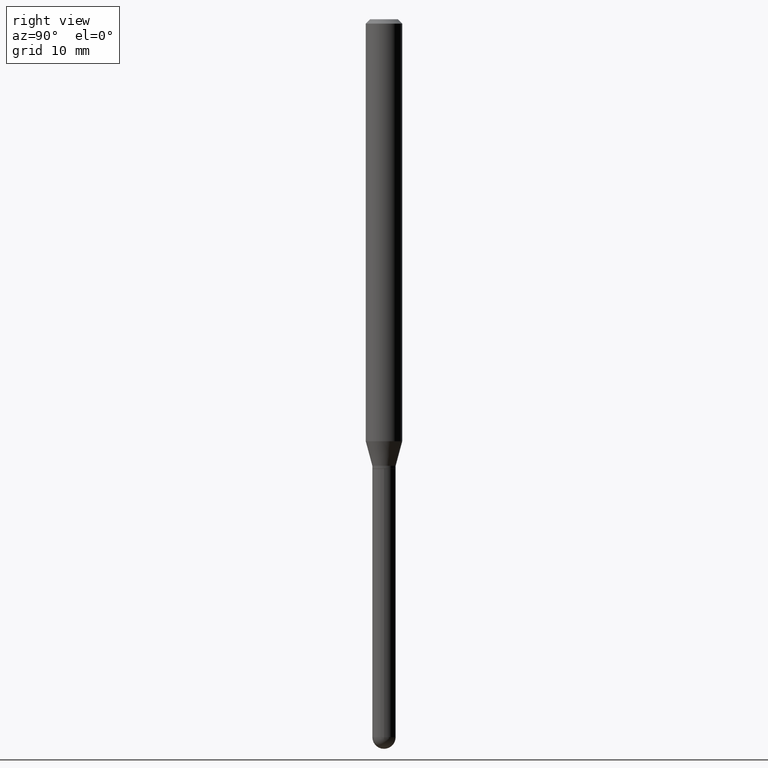
[diagram: clean part render]
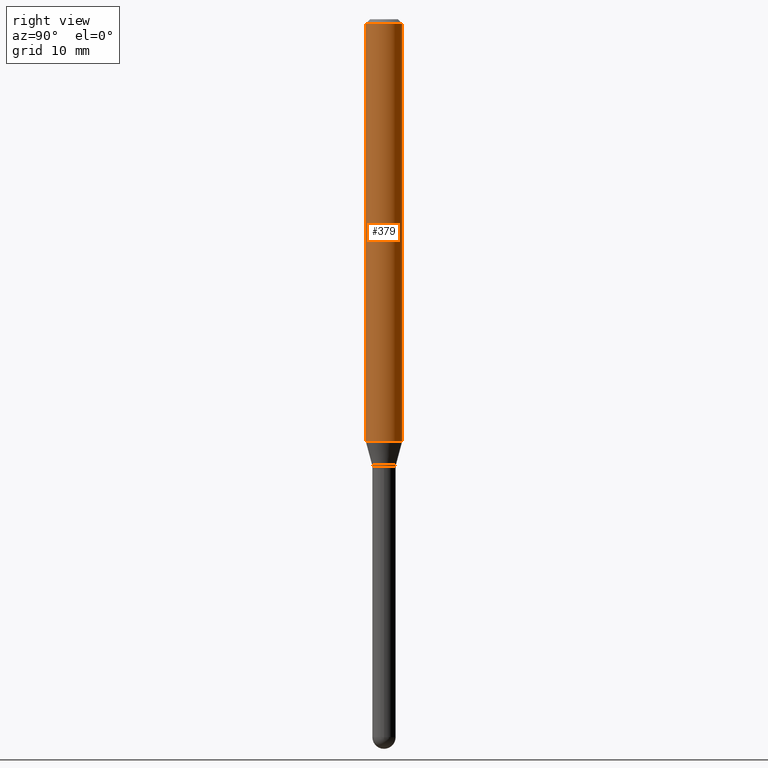
[diagram: same view with one face highlighted and labeled with its STEP entity id]
A machine part, right view. The second image highlights one B-rep face of the part: STEP entity #379.
In plain terms, the highlighted cylindrical surface (edge-blend (fillet) strip) has radius 1.5875 mm, axis along (-0, 0, 1).
Its self-contained STEP definition (entity closure, byte-faithful):
#1 = DIRECTION ( 'NONE',  ( -2.445439558819797748E-29, 3.491523222734966752E-15, 1.000000000000000000 ) ) ;
#7 = FACE_OUTER_BOUND ( 'NONE', #200, .T. ) ;
#30 = CARTESIAN_POINT ( 'NONE',  ( 3.536176169686316712E-29, -5.048843334365790942E-15, -1.446028856829699283 ) ) ;
#37 = ORIENTED_EDGE ( 'NONE', *, *, #264, .F. ) ;
#54 = AXIS2_PLACEMENT_3D ( 'NONE', #30, #461, #425 ) ;
#59 = DIRECTION ( 'NONE',  ( -6.982962677686265922E-15, -1.000000000000000000, 3.483106191921935554E-15 ) ) ;
#101 = CIRCLE ( 'NONE', #252, 0.06250000000000000000 ) ;
#113 = CARTESIAN_POINT ( 'NONE',  ( 4.440892098500982135E-16, 0.06249999999999995837, -0.01500000000000022669 ) ) ;
#119 = DIRECTION ( 'NONE',  ( -6.982962677686265922E-15, -1.000000000000000000, 3.491523222734966752E-15 ) ) ;
#123 = CARTESIAN_POINT ( 'NONE',  ( 4.440892098500981149E-16, 0.06249999999999499012, -1.446028856829699505 ) ) ;
#127 = ORIENTED_EDGE ( 'NONE', *, *, #162, .T. ) ;
#162 = EDGE_CURVE ( 'NONE', #447, #492, #432, .T. ) ;
#168 = VERTEX_POINT ( 'NONE', #275 ) ;
#169 = DIRECTION ( 'NONE',  ( -2.445439558819798028E-29, 3.491523222734966752E-15, 1.000000000000000000 ) ) ;
#170 = ORIENTED_EDGE ( 'NONE', *, *, #334, .F. ) ;
#176 = AXIS2_PLACEMENT_3D ( 'NONE', #251, #169, #119 ) ;
#182 = VECTOR ( 'NONE', #1, 39.37007874015748143 ) ;
#192 = CARTESIAN_POINT ( 'NONE',  ( -4.364351673553559242E-16, -0.06250000000000500988, -1.446028856829699061 ) ) ;
#200 = EDGE_LOOP ( 'NONE', ( #429, #127, #170, #37 ) ) ;
#240 = LINE ( 'NONE', #315, #182 ) ;
#245 = CYLINDRICAL_SURFACE ( 'NONE', #176, 0.06250000000000000000 ) ;
#251 = CARTESIAN_POINT ( 'NONE',  ( 0.000000000000000000, 0.000000000000000000, 0.000000000000000000 ) ) ;
#252 = AXIS2_PLACEMENT_3D ( 'NONE', #367, #491, #59 ) ;
#257 = EDGE_CURVE ( 'NONE', #452, #447, #366, .T. ) ;
#264 = EDGE_CURVE ( 'NONE', #452, #168, #240, .T. ) ;
#275 = CARTESIAN_POINT ( 'NONE',  ( -4.364351673553912750E-16, -0.06250000000000005551, -0.01499999999999979128 ) ) ;
#315 = CARTESIAN_POINT ( 'NONE',  ( -4.364351673553916201E-16, -0.06250000000000000000, 2.182202014209354220E-16 ) ) ;
#318 = DIRECTION ( 'NONE',  ( -2.445439558819797748E-29, 3.491523222734966752E-15, 1.000000000000000000 ) ) ;
#334 = EDGE_CURVE ( 'NONE', #168, #492, #101, .T. ) ;
#366 = CIRCLE ( 'NONE', #54, 0.06250000000000000000 ) ;
#367 = CARTESIAN_POINT ( 'NONE',  ( 3.668159338229699547E-31, -5.237284834102453580E-17, -0.01500000000000000812 ) ) ;
#379 = ADVANCED_FACE ( 'NONE', ( #7 ), #245, .T. ) ;
#415 = VECTOR ( 'NONE', #318, 39.37007874015748143 ) ;
#425 = DIRECTION ( 'NONE',  ( -6.982962677686265922E-15, -1.000000000000000000, 4.370956789862821150E-15 ) ) ;
#428 = CARTESIAN_POINT ( 'NONE',  ( 4.440892098500625669E-16, 0.06250000000000000000, -2.182202014209354220E-16 ) ) ;
#429 = ORIENTED_EDGE ( 'NONE', *, *, #257, .T. ) ;
#432 = LINE ( 'NONE', #428, #415 ) ;
#447 = VERTEX_POINT ( 'NONE', #123 ) ;
#452 = VERTEX_POINT ( 'NONE', #192 ) ;
#461 = DIRECTION ( 'NONE',  ( -2.445439558819798028E-29, 3.491523222734966752E-15, 1.000000000000000000 ) ) ;
#491 = DIRECTION ( 'NONE',  ( -2.445439558819798028E-29, 3.491523222734966752E-15, 1.000000000000000000 ) ) ;
#492 = VERTEX_POINT ( 'NONE', #113 ) ;